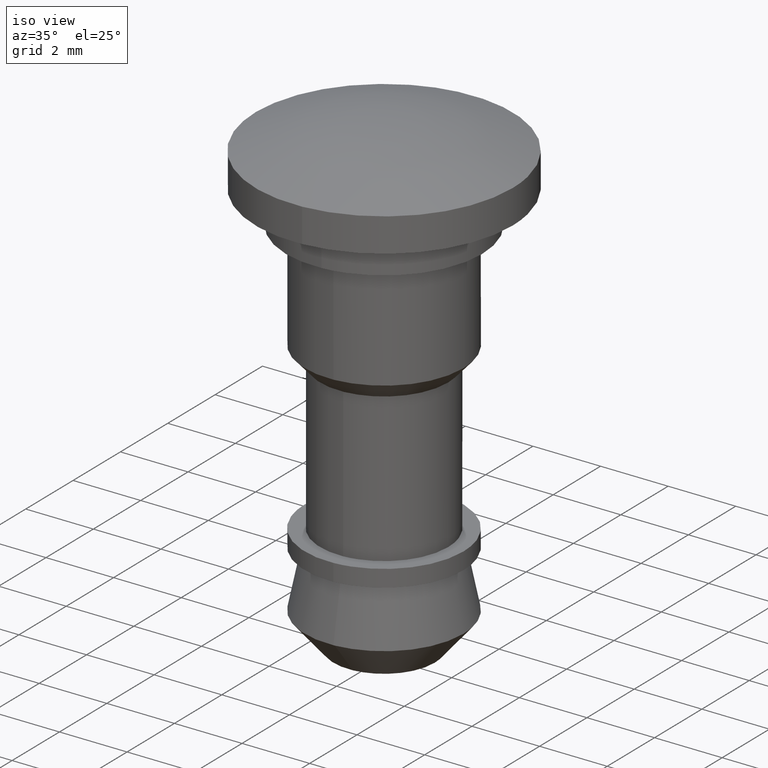
[diagram: clean part render]
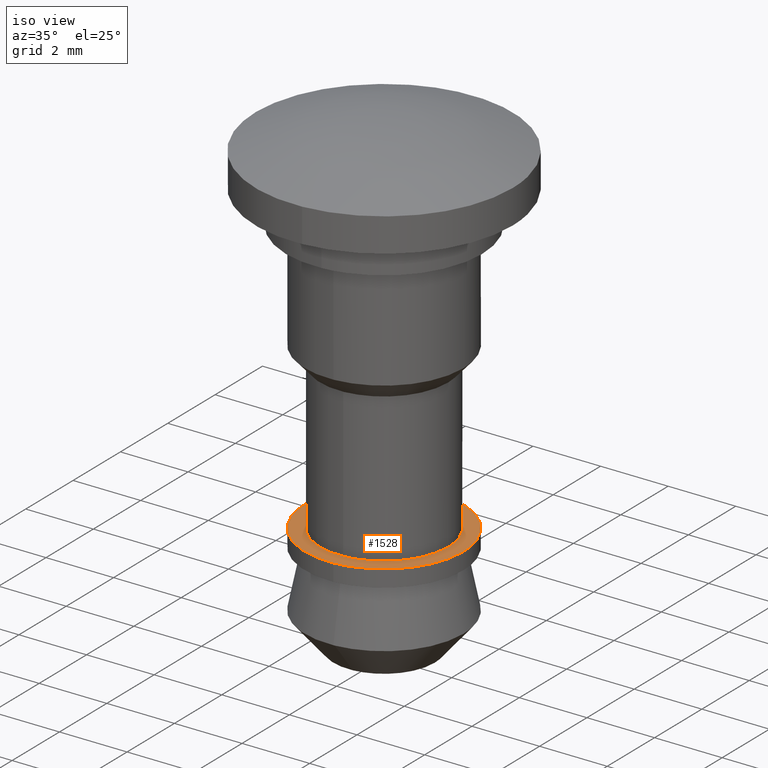
[diagram: same view with one face highlighted and labeled with its STEP entity id]
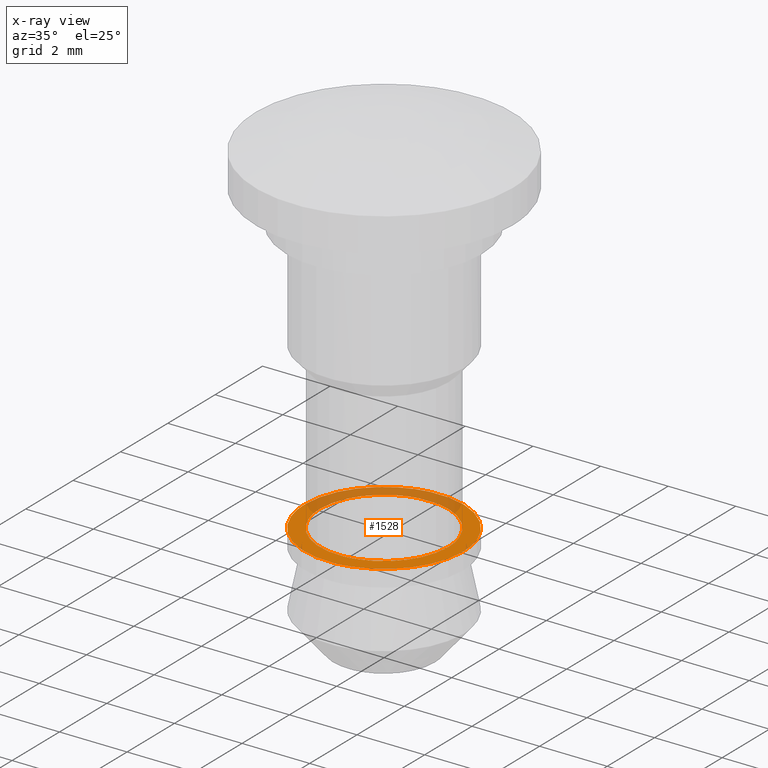
[diagram: x-ray of the same camera — body ghosted, the highlighted face saturated]
A machine part, iso view. The second image highlights one B-rep face of the part: STEP entity #1528.
The next image is the same camera in x-ray: the body ghosted, the highlighted face saturated — about 33% of this face is hidden behind the body in this view.
In plain terms, the highlighted face is a freeform B-spline surface patch.
Its self-contained STEP definition (entity closure, byte-faithful):
#812=CARTESIAN_POINT('',(0.115992225125438,-1.896456117000984,-8.100000000000000));
#813=VERTEX_POINT('',#812);
#819=CARTESIAN_POINT('',(1.900000000000000,0.0,-8.100000000000000));
#820=VERTEX_POINT('',#819);
#821=CARTESIAN_POINT('',(1.900000000000000,0.0,-8.100000000000000));
#822=CARTESIAN_POINT('',(1.900000000000000,-1.787341527103433,-8.100000000000000));
#823=CARTESIAN_POINT('',(0.115992225125438,-1.896456117000984,-8.100000000000000));
#831=(BOUNDED_CURVE()B_SPLINE_CURVE(2,(#821,#822,#823),.UNSPECIFIED.,.F.,.U.)B_SPLINE_CURVE_WITH_KNOTS((3,3),(0.500000000000000,0.739332962240293),.UNSPECIFIED.)CURVE()GEOMETRIC_REPRESENTATION_ITEM()RATIONAL_B_SPLINE_CURVE((1.0,0.719603993285128,0.976072041669611))REPRESENTATION_ITEM(''));
#832=EDGE_CURVE('',#820,#813,#831,.T.);
#834=CARTESIAN_POINT('',(-0.224262563144352,1.886718395194596,-8.100000000000000));
#835=VERTEX_POINT('',#834);
#836=CARTESIAN_POINT('',(-0.224262563144352,1.886718395194596,-8.100000000000001));
#837=CARTESIAN_POINT('',(-0.112524572863718,1.900000000000000,-8.100000000000000));
#838=CARTESIAN_POINT('',(0.0,1.900000000000000,-8.100000000000000));
#839=CARTESIAN_POINT('',(1.900000000000000,1.900000000000000,-8.100000000000000));
#840=CARTESIAN_POINT('',(1.900000000000000,0.0,-8.100000000000000));
#848=(BOUNDED_CURVE()B_SPLINE_CURVE(2,(#836,#837,#838,#839,#840),.UNSPECIFIED.,.F.,.U.)B_SPLINE_CURVE_WITH_KNOTS((3,2,3),(0.229562695904452,0.250000000000000,0.500000000000000),.UNSPECIFIED.)CURVE()GEOMETRIC_REPRESENTATION_ITEM()RATIONAL_B_SPLINE_CURVE((0.956027190079514,0.976056208878342,1.0,0.707106781186547,1.0))REPRESENTATION_ITEM(''));
#849=EDGE_CURVE('',#835,#820,#848,.T.);
#879=CARTESIAN_POINT('',(-1.900000000000000,0.0,-8.100000000000000));
#880=VERTEX_POINT('',#879);
#881=CARTESIAN_POINT('',(-1.900000000000000,0.0,-8.100000000000000));
#882=CARTESIAN_POINT('',(-1.900000000000001,1.687533835537876,-8.100000000000001));
#883=CARTESIAN_POINT('',(-0.224262563144352,1.886718395194596,-8.100000000000001));
#891=(BOUNDED_CURVE()B_SPLINE_CURVE(2,(#881,#882,#883),.UNSPECIFIED.,.F.,.U.)B_SPLINE_CURVE_WITH_KNOTS((3,3),(0.0,0.229562695904452),.UNSPECIFIED.)CURVE()GEOMETRIC_REPRESENTATION_ITEM()RATIONAL_B_SPLINE_CURVE((1.0,0.731050572308205,0.956027190079514))REPRESENTATION_ITEM(''));
#892=EDGE_CURVE('',#880,#835,#891,.T.);
#894=CARTESIAN_POINT('',(0.115992225125438,-1.896456117000984,-8.100000000000000));
#895=CARTESIAN_POINT('',(0.058050250276554,-1.900000000000000,-8.100000000000000));
#896=CARTESIAN_POINT('',(0.0,-1.900000000000000,-8.100000000000000));
#897=CARTESIAN_POINT('',(-1.900000000000000,-1.900000000000000,-8.100000000000000));
#898=CARTESIAN_POINT('',(-1.900000000000000,0.0,-8.100000000000000));
#906=(BOUNDED_CURVE()B_SPLINE_CURVE(2,(#894,#895,#896,#897,#898),.UNSPECIFIED.,.F.,.U.)B_SPLINE_CURVE_WITH_KNOTS((3,2,3),(0.739332962240292,0.750000000000000,1.0),.UNSPECIFIED.)CURVE()GEOMETRIC_REPRESENTATION_ITEM()RATIONAL_B_SPLINE_CURVE((0.976072041669610,0.987502787901418,1.0,0.707106781186547,1.0))REPRESENTATION_ITEM(''));
#907=EDGE_CURVE('',#813,#880,#906,.T.);
#936=CARTESIAN_POINT('',(-0.277376350999555,2.333572874347214,-8.099999999999994));
#937=VERTEX_POINT('',#936);
#938=CARTESIAN_POINT('',(2.350000000000000,0.0,-8.100000000000000));
#939=VERTEX_POINT('',#938);
#940=CARTESIAN_POINT('',(-0.277376350999555,2.333572874347214,-8.099999999999994));
#941=CARTESIAN_POINT('',(-0.139174609285931,2.350000000000001,-8.100000000000000));
#942=CARTESIAN_POINT('',(0.0,2.350000000000000,-8.100000000000000));
#943=CARTESIAN_POINT('',(2.350000000000001,2.350000000000001,-8.100000000000000));
#944=CARTESIAN_POINT('',(2.350000000000000,0.0,-8.100000000000000));
#952=(BOUNDED_CURVE()B_SPLINE_CURVE(2,(#940,#941,#942,#943,#944),.UNSPECIFIED.,.F.,.U.)B_SPLINE_CURVE_WITH_KNOTS((3,2,3),(0.229562770480249,0.250000000000000,0.500000000000000),.UNSPECIFIED.)CURVE()GEOMETRIC_REPRESENTATION_ITEM()RATIONAL_B_SPLINE_CURVE((0.956027336251490,0.976056296249323,1.0,0.707106781186547,1.0))REPRESENTATION_ITEM(''));
#953=EDGE_CURVE('',#937,#939,#952,.T.);
#955=CARTESIAN_POINT('',(0.143463260574800,-2.345616825669656,-8.100000000000012));
#956=VERTEX_POINT('',#955);
#957=CARTESIAN_POINT('',(2.350000000000000,0.0,-8.100000000000000));
#958=CARTESIAN_POINT('',(2.350000000000000,-2.210660781835362,-8.099999999999998));
#959=CARTESIAN_POINT('',(0.143463260574800,-2.345616825669656,-8.100000000000012));
#967=(BOUNDED_CURVE()B_SPLINE_CURVE(2,(#957,#958,#959),.UNSPECIFIED.,.F.,.U.)B_SPLINE_CURVE_WITH_KNOTS((3,3),(0.500000000000000,0.739333081018898),.UNSPECIFIED.)CURVE()GEOMETRIC_REPRESENTATION_ITEM()RATIONAL_B_SPLINE_CURVE((1.0,0.719603854127337,0.976072296234903))REPRESENTATION_ITEM(''));
#968=EDGE_CURVE('',#939,#956,#967,.T.);
#1039=CARTESIAN_POINT('',(-2.350000000000000,0.0,-8.100000000000000));
#1040=VERTEX_POINT('',#1039);
#1041=CARTESIAN_POINT('',(-2.350000000000000,0.0,-8.100000000000000));
#1042=CARTESIAN_POINT('',(-2.350000000000000,2.087213829353850,-8.100000000000000));
#1043=CARTESIAN_POINT('',(-0.277376350999555,2.333572874347214,-8.099999999999994));
#1051=(BOUNDED_CURVE()B_SPLINE_CURVE(2,(#1041,#1042,#1043),.UNSPECIFIED.,.F.,.U.)B_SPLINE_CURVE_WITH_KNOTS((3,3),(0.0,0.229562770480249),.UNSPECIFIED.)CURVE()GEOMETRIC_REPRESENTATION_ITEM()RATIONAL_B_SPLINE_CURVE((1.0,0.731050484937225,0.956027336251490))REPRESENTATION_ITEM(''));
#1052=EDGE_CURVE('',#1040,#937,#1051,.T.);
#1086=CARTESIAN_POINT('',(0.143463260574800,-2.345616825669656,-8.100000000000014));
#1087=CARTESIAN_POINT('',(0.071798184155915,-2.350000000000000,-8.100000000000000));
#1088=CARTESIAN_POINT('',(0.0,-2.350000000000000,-8.100000000000000));
#1089=CARTESIAN_POINT('',(-2.350000000000001,-2.350000000000001,-8.100000000000000));
#1090=CARTESIAN_POINT('',(-2.350000000000000,0.0,-8.100000000000000));
#1098=(BOUNDED_CURVE()B_SPLINE_CURVE(2,(#1086,#1087,#1088,#1089,#1090),.UNSPECIFIED.,.F.,.U.)B_SPLINE_CURVE_WITH_KNOTS((3,2,3),(0.739333081018898,0.750000000000000,1.0),.UNSPECIFIED.)CURVE()GEOMETRIC_REPRESENTATION_ITEM()RATIONAL_B_SPLINE_CURVE((0.976072296234905,0.987502927059211,1.0,0.707106781186547,1.0))REPRESENTATION_ITEM(''));
#1099=EDGE_CURVE('',#956,#1040,#1098,.T.);
#1511=CARTESIAN_POINT('',(-2.584764885858312,-2.584707926339993,-8.100000000000000));
#1512=CARTESIAN_POINT('',(2.584764759794489,-2.584707926339993,-8.100000000000000));
#1513=CARTESIAN_POINT('',(-2.584764885858312,2.584722255594620,-8.100000000000000));
#1514=CARTESIAN_POINT('',(2.584764759794489,2.584722255594620,-8.100000000000000));
#1515=B_SPLINE_SURFACE_WITH_KNOTS('',1,1,((#1511,#1513),(#1512,#1514)),.UNSPECIFIED.,.F.,.F.,.U.,(2,2),(2,2),(0.0,5.169529645652801),(0.0,5.169430181934613),.UNSPECIFIED.);
#1516=ORIENTED_EDGE('',*,*,#1099,.F.);
#1517=ORIENTED_EDGE('',*,*,#968,.F.);
#1518=ORIENTED_EDGE('',*,*,#953,.F.);
#1519=ORIENTED_EDGE('',*,*,#1052,.F.);
#1520=EDGE_LOOP('',(#1516,#1517,#1518,#1519));
#1521=FACE_OUTER_BOUND('',#1520,.T.);
#1522=ORIENTED_EDGE('',*,*,#832,.T.);
#1523=ORIENTED_EDGE('',*,*,#907,.T.);
#1524=ORIENTED_EDGE('',*,*,#892,.T.);
#1525=ORIENTED_EDGE('',*,*,#849,.T.);
#1526=EDGE_LOOP('',(#1522,#1523,#1524,#1525));
#1527=FACE_BOUND('',#1526,.T.);
#1528=ADVANCED_FACE('',(#1521,#1527),#1515,.T.);